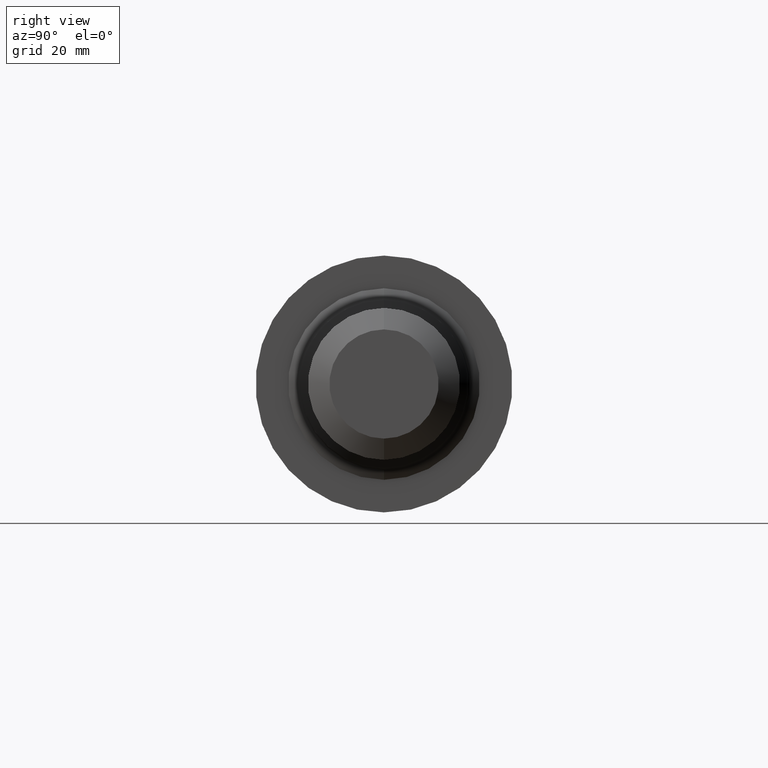
[diagram: clean part render]
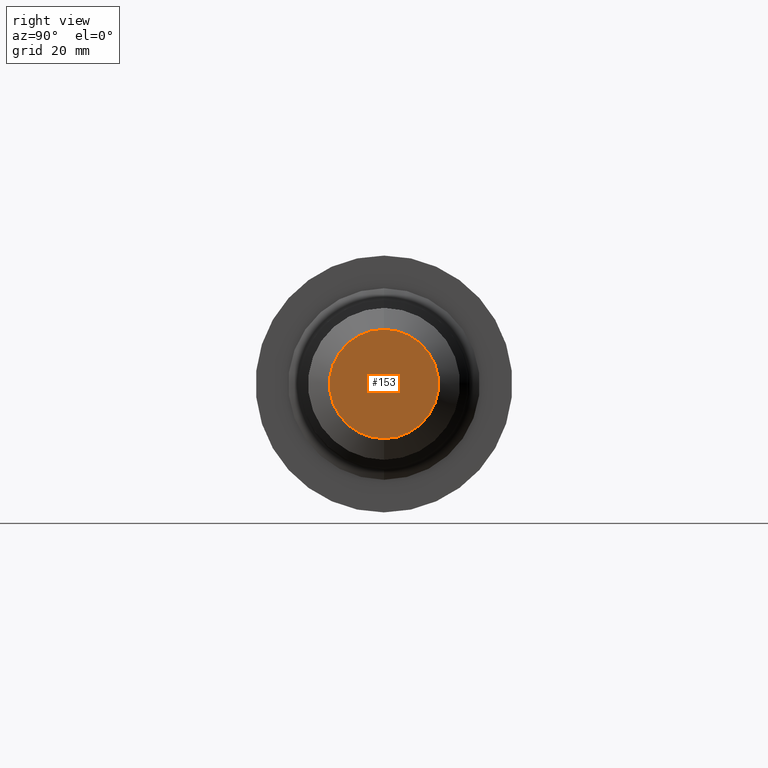
[diagram: same view with one face highlighted and labeled with its STEP entity id]
A machine part, right view. The second image highlights one B-rep face of the part: STEP entity #153.
In plain terms, the highlighted planar face has unit normal (-1, 0, -0).
Its self-contained STEP definition (entity closure, byte-faithful):
#5 = CIRCLE ( 'NONE', #109, 0.3539359353944886988 ) ;
#22 = FACE_OUTER_BOUND ( 'NONE', #383, .T. ) ;
#108 = AXIS2_PLACEMENT_3D ( 'NONE', #782, #208, #471 ) ;
#109 = AXIS2_PLACEMENT_3D ( 'NONE', #803, #491, #380 ) ;
#129 = EDGE_CURVE ( 'NONE', #409, #444, #487, .T. ) ;
#153 = ADVANCED_FACE ( 'NONE', ( #22 ), #531, .F. ) ;
#208 = DIRECTION ( 'NONE',  ( -1.000000000000000000, 0.000000000000000000, -0.000000000000000000 ) ) ;
#265 = CARTESIAN_POINT ( 'NONE',  ( 4.120000000000000107, 0.000000000000000000, 0.3539359353944886988 ) ) ;
#301 = ORIENTED_EDGE ( 'NONE', *, *, #507, .F. ) ;
#380 = DIRECTION ( 'NONE',  ( 0.000000000000000000, 0.000000000000000000, 1.000000000000000000 ) ) ;
#383 = EDGE_LOOP ( 'NONE', ( #539, #301 ) ) ;
#395 = DIRECTION ( 'NONE',  ( 0.000000000000000000, 0.000000000000000000, 1.000000000000000000 ) ) ;
#409 = VERTEX_POINT ( 'NONE', #265 ) ;
#444 = VERTEX_POINT ( 'NONE', #681 ) ;
#465 = CARTESIAN_POINT ( 'NONE',  ( 4.120000000000000107, 0.000000000000000000, 0.000000000000000000 ) ) ;
#471 = DIRECTION ( 'NONE',  ( -0.000000000000000000, 0.000000000000000000, 1.000000000000000000 ) ) ;
#487 = CIRCLE ( 'NONE', #702, 0.3539359353944886988 ) ;
#491 = DIRECTION ( 'NONE',  ( -1.000000000000000000, -0.000000000000000000, -0.000000000000000000 ) ) ;
#507 = EDGE_CURVE ( 'NONE', #444, #409, #5, .T. ) ;
#531 = PLANE ( 'NONE',  #108 ) ;
#539 = ORIENTED_EDGE ( 'NONE', *, *, #129, .F. ) ;
#681 = CARTESIAN_POINT ( 'NONE',  ( 4.120000000000000107, 5.182925294820782290E-17, -0.3539359353944886988 ) ) ;
#702 = AXIS2_PLACEMENT_3D ( 'NONE', #465, #713, #395 ) ;
#713 = DIRECTION ( 'NONE',  ( -1.000000000000000000, -0.000000000000000000, -0.000000000000000000 ) ) ;
#782 = CARTESIAN_POINT ( 'NONE',  ( 4.120000000000000107, 0.3539359353944886988, 0.000000000000000000 ) ) ;
#803 = CARTESIAN_POINT ( 'NONE',  ( 4.120000000000000107, 0.000000000000000000, 0.000000000000000000 ) ) ;